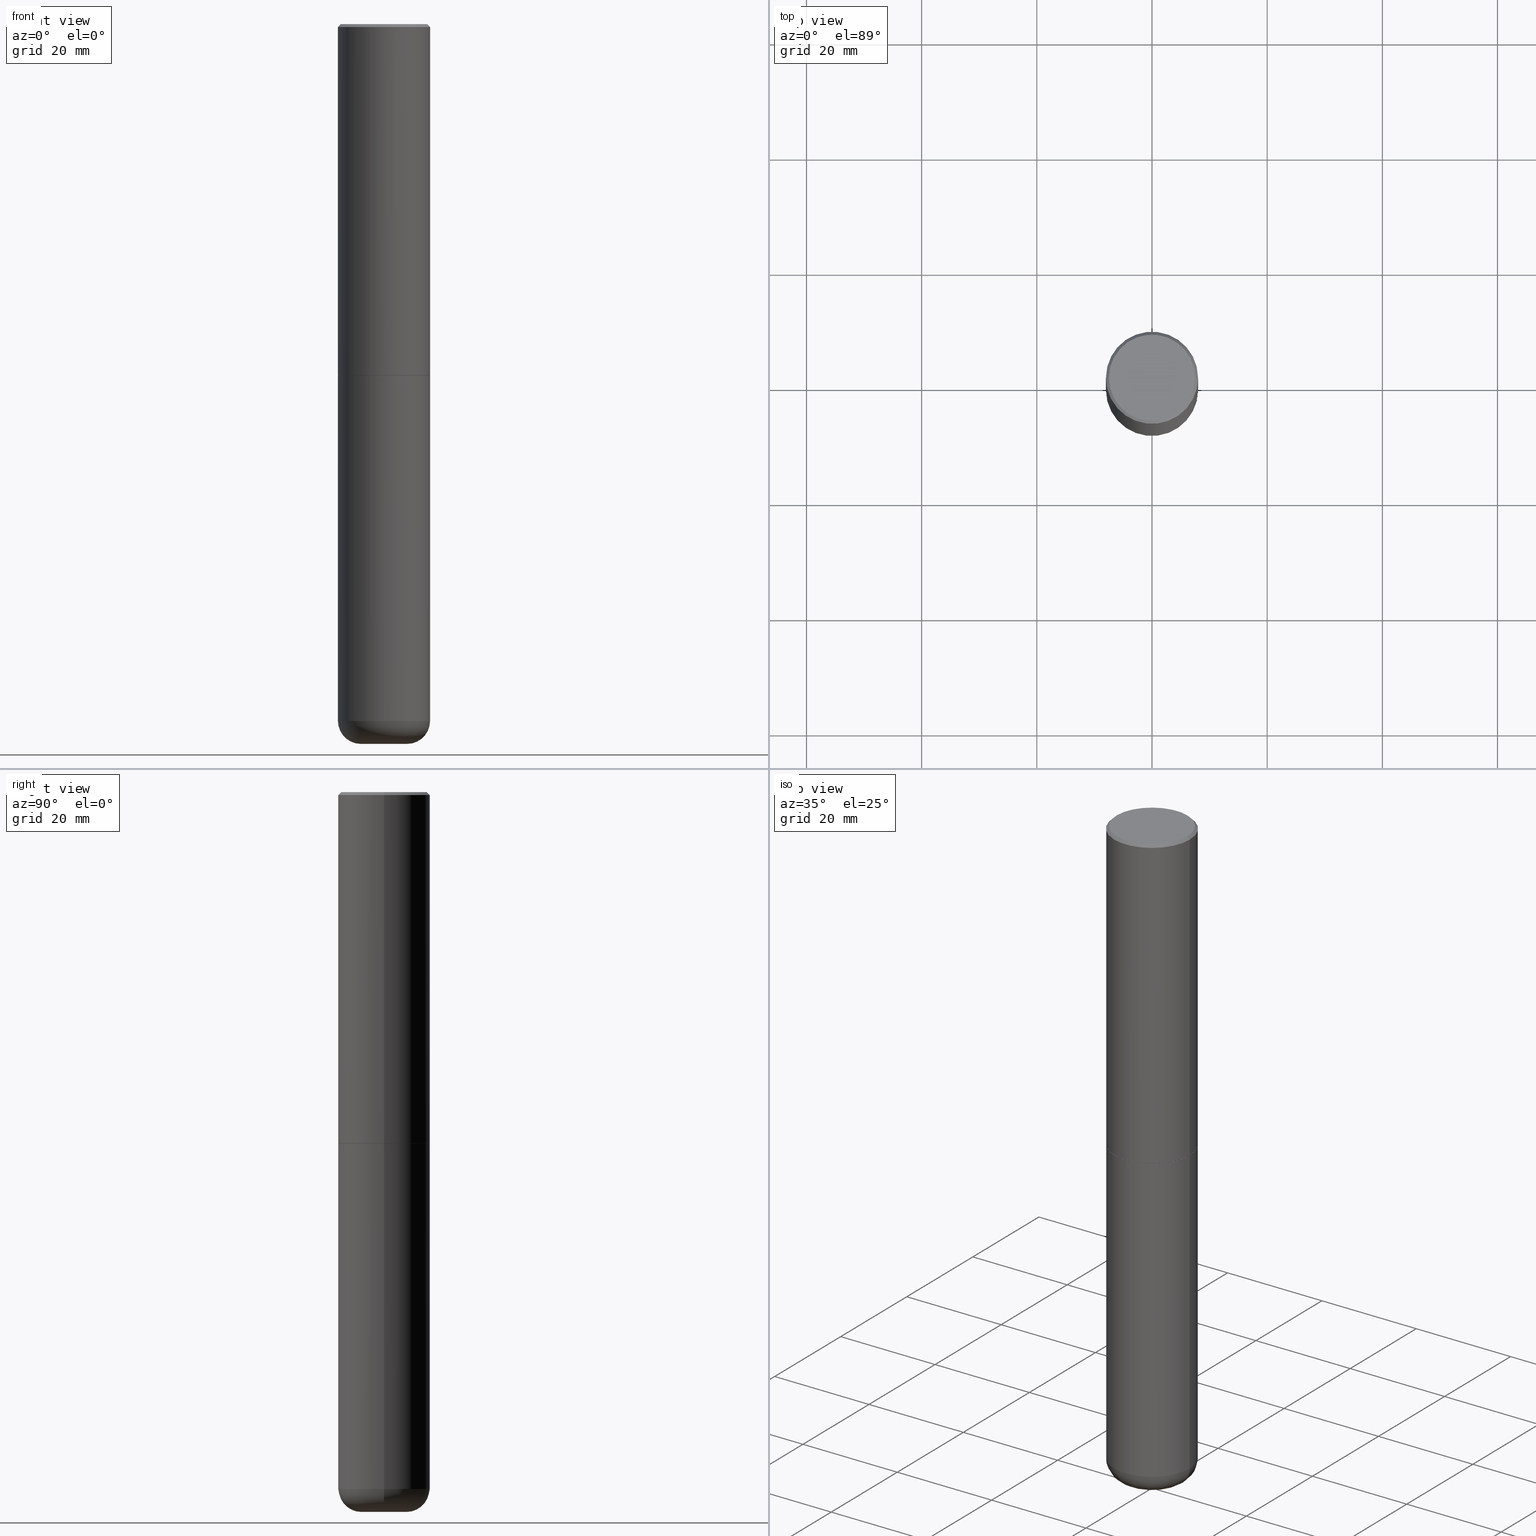
[diagram: canonical four-view strip — front | top / right | iso, engineering-drawing reading convention]
A machine part, canonical four-view strip (front | top / right | iso — engineering-drawing reading convention). The complete STEP part file that produces these views, byte-faithful:
ISO-10303-21;
HEADER;
FILE_DESCRIPTION (( 'STEP AP203' ),
    '1' );
FILE_NAME ('44878.STEP',
    '2024-03-04T12:49:39',
    ( '' ),
    ( '' ),
    'SwSTEP 2.0',
    'SolidWorks 2023',
    '' );
FILE_SCHEMA (( 'CONFIG_CONTROL_DESIGN' ));
ENDSEC;

DATA;
#1 = CARTESIAN_POINT ( 'NONE',  ( 1.164972429890475298E-28, -1.663271880198097531E-14, -4.763799999999999812 ) ) ;
#2 = PERSON_AND_ORGANIZATION ( #374, #380 ) ;
#3 = DIRECTION ( 'NONE',  ( 0.7071067811866199593, -2.468850131083015945E-15, 0.7071067811864750752 ) ) ;
#4 = ORIENTED_EDGE ( 'NONE', *, *, #378, .T. ) ;
#5 = DIRECTION ( 'NONE',  ( 1.000000000000000000, -6.982962677686266711E-15, 0.000000000000000000 ) ) ;
#6 = CONICAL_SURFACE ( 'NONE', #356, 0.3139500000000000068, 0.7853981633975507526 ) ;
#7 = DIRECTION ( 'NONE',  ( -2.438088387897960049E-29, 3.491481338843145188E-15, 1.000000000000000000 ) ) ;
#8 = EDGE_CURVE ( 'NONE', #292, #60, #270, .T. ) ;
#9 = LINE ( 'NONE', #138, #251 ) ;
#10 = DIRECTION ( 'NONE',  ( -2.445468806185136877E-29, 3.491481338843145188E-15, 1.000000000000000000 ) ) ;
#11 = CARTESIAN_POINT ( 'NONE',  ( 5.870592416128037625E-29, -8.381650102026854256E-15, -2.400599999999999845 ) ) ;
#12 = ORIENTED_EDGE ( 'NONE', *, *, #187, .T. ) ;
#13 = ADVANCED_FACE ( 'NONE', ( #40 ), #83, .T. ) ;
#14 = FACE_OUTER_BOUND ( 'NONE', #225, .T. ) ;
#15 = LINE ( 'NONE', #22, #219 ) ;
#16 = AXIS2_PLACEMENT_3D ( 'NONE', #286, #324, #230 ) ;
#17 = FACE_OUTER_BOUND ( 'NONE', #69, .T. ) ;
#18 = EDGE_CURVE ( 'NONE', #167, #60, #9, .T. ) ;
#19 =( CONVERSION_BASED_UNIT ( 'INCH', #85 ) LENGTH_UNIT ( ) NAMED_UNIT ( #23 ) );
#20 = PRODUCT_DEFINITION_SHAPE ( 'NONE', 'NONE',  #354 ) ;
#21 = AXIS2_PLACEMENT_3D ( 'NONE', #217, #151, #405 ) ;
#22 = CARTESIAN_POINT ( 'NONE',  ( 0.3149500000000000077, -2.199284095337289871E-15, 1.535751875536930130E-29 ) ) ;
#23 = DIMENSIONAL_EXPONENTS ( 1.000000000000000000, 0.000000000000000000, 0.000000000000000000, 0.000000000000000000, 0.000000000000000000, 0.000000000000000000, 0.000000000000000000 ) ;
#24 = ORIENTED_EDGE ( 'NONE', *, *, #8, .T. ) ;
#25 = ADVANCED_FACE ( 'NONE', ( #235 ), #396, .F. ) ;
#26 = FACE_OUTER_BOUND ( 'NONE', #222, .T. ) ;
#27 = ORIENTED_EDGE ( 'NONE', *, *, #366, .T. ) ;
#28 = APPROVAL_ROLE ( '' ) ;
#29 = CARTESIAN_POINT ( 'NONE',  ( -0.3149500000000003408, -1.439486445570453933E-14, -4.763799999999999812 ) ) ;
#30 = EDGE_LOOP ( 'NONE', ( #414, #74, #88, #305 ) ) ;
#31 = FACE_OUTER_BOUND ( 'NONE', #173, .T. ) ;
#32 = ORIENTED_EDGE ( 'NONE', *, *, #174, .T. ) ;
#33 = PERSON_AND_ORGANIZATION_ROLE ( 'creator' ) ;
#34 = CYLINDRICAL_SURFACE ( 'NONE', #202, 0.3149500000000001743 ) ;
#35 = DIRECTION ( 'NONE',  ( 2.438088387897960049E-29, -3.491481338843145188E-15, -1.000000000000000000 ) ) ;
#36 = EDGE_CURVE ( 'NONE', #60, #42, #89, .T. ) ;
#37 = CARTESIAN_POINT ( 'NONE',  ( 0.2949499999999998789, -2.127023677808859680E-15, 2.561107494061710474E-17 ) ) ;
#38 = CIRCLE ( 'NONE', #61, 0.3149500000000000077 ) ;
#39 = ORIENTED_EDGE ( 'NONE', *, *, #8, .F. ) ;
#40 = FACE_OUTER_BOUND ( 'NONE', #382, .T. ) ;
#41 = ADVANCED_FACE ( 'NONE', ( #239 ), #272, .T. ) ;
#42 = VERTEX_POINT ( 'NONE', #109 ) ;
#43 = CIRCLE ( 'NONE', #195, 0.3149500000000002853 ) ;
#44 = DIRECTION ( 'NONE',  ( -2.445468806185136597E-29, 3.491481338843145583E-15, 1.000000000000000000 ) ) ;
#45 = CYLINDRICAL_SURFACE ( 'NONE', #21, 0.3149500000000000077 ) ;
#46 = AXIS2_PLACEMENT_3D ( 'NONE', #221, #355, #62 ) ;
#47 = CIRCLE ( 'NONE', #113, 0.3139500000000000068 ) ;
#48 = PLANE ( 'NONE',  #72 ) ;
#49 = ADVANCED_FACE ( 'NONE', ( #237 ), #367, .F. ) ;
#50 = DIRECTION ( 'NONE',  ( -2.445468806185136597E-29, 3.491481338843145583E-15, 1.000000000000000000 ) ) ;
#51 = CIRCLE ( 'NONE', #325, 0.1574500000000000621 ) ;
#52 = CALENDAR_DATE ( 2024, 4, 3 ) ;
#53 = ORIENTED_EDGE ( 'NONE', *, *, #279, .F. ) ;
#54 = PERSON_AND_ORGANIZATION_ROLE ( 'creator' ) ;
#55 = LINE ( 'NONE', #162, #288 ) ;
#56 = ORIENTED_EDGE ( 'NONE', *, *, #68, .F. ) ;
#57 = CC_DESIGN_DATE_AND_TIME_ASSIGNMENT ( #383, #417, ( #354 ) ) ;
#58 = DATE_AND_TIME ( #295, #404 ) ;
#59 = CARTESIAN_POINT ( 'NONE',  ( 0.3149500000000002853, -1.058093419736414728E-14, -2.400599999999999845 ) ) ;
#60 = VERTEX_POINT ( 'NONE', #136 ) ;
#61 = AXIS2_PLACEMENT_3D ( 'NONE', #308, #137, #344 ) ;
#62 = DIRECTION ( 'NONE',  ( 1.000000000000000000, -6.982962677686266711E-15, 0.000000000000000000 ) ) ;
#63 = VERTEX_POINT ( 'NONE', #362 ) ;
#64 = PERSON_AND_ORGANIZATION ( #374, #380 ) ;
#65 = MANIFOLD_SOLID_BREP ( 'Body-Move/Copy2[1]', #299 ) ;
#66 = CARTESIAN_POINT ( 'NONE',  ( 0.3139500000000000068, -1.057744271602530112E-14, -2.401599999999999735 ) ) ;
#67 = MANIFOLD_SOLID_BREP ( 'Body-Move/Copy2[2]', #345 ) ;
#68 = EDGE_CURVE ( 'NONE', #164, #63, #353, .T. ) ;
#69 = EDGE_LOOP ( 'NONE', ( #105, #357, #220, #206 ) ) ;
#70 = CARTESIAN_POINT ( 'NONE',  ( -0.1574500000000000621, -1.522937101554951638E-14, -4.921300000000000452 ) ) ;
#71 = ORIENTED_EDGE ( 'NONE', *, *, #203, .F. ) ;
#72 = AXIS2_PLACEMENT_3D ( 'NONE', #86, #278, #243 ) ;
#73 = DIRECTION ( 'NONE',  ( 1.000000000000000000, -6.982962677686265922E-15, 4.876176775795935232E-29 ) ) ;
#74 = ORIENTED_EDGE ( 'NONE', *, *, #99, .T. ) ;
#75 = APPROVAL ( #285, 'UNSPECIFIED' ) ;
#76 = CARTESIAN_POINT ( 'NONE',  ( -0.3149500000000000077, -1.027107584639690030E-14, -2.401599999999999735 ) ) ;
#77 = CARTESIAN_POINT ( 'NONE',  ( 2.059624841783563274E-15, 0.2949499999999998789, -1.017006883421484104E-15 ) ) ;
#78 = DIRECTION ( 'NONE',  ( 2.445468806185136597E-29, -3.491481338843145583E-15, -1.000000000000000000 ) ) ;
#79 = DIRECTION ( 'NONE',  ( 1.000000000000000000, -6.982962677686266711E-15, 4.883557194083112901E-29 ) ) ;
#80 = CIRCLE ( 'NONE', #403, 0.2949499999999998789 ) ;
#81 = EDGE_CURVE ( 'NONE', #63, #292, #55, .T. ) ;
#82 =( NAMED_UNIT ( * ) SI_UNIT ( $, .STERADIAN. ) SOLID_ANGLE_UNIT ( ) );
#83 = TOROIDAL_SURFACE ( 'NONE', #158, 0.1574500000000000066, 0.1575000000000006395 ) ;
#84 = EDGE_CURVE ( 'NONE', #258, #188, #214, .T. ) ;
#85 = LENGTH_MEASURE_WITH_UNIT ( LENGTH_MEASURE( 0.02539999999999999897 ), #314 );
#86 = CARTESIAN_POINT ( 'NONE',  ( 5.873037884934223228E-29, -8.385141583365697263E-15, -2.401599999999999735 ) ) ;
#87 = APPLICATION_PROTOCOL_DEFINITION ( 'international standard', 'config_control_design', 1994, #363 ) ;
#88 = ORIENTED_EDGE ( 'NONE', *, *, #320, .T. ) ;
#89 = CIRCLE ( 'NONE', #311, 0.3149500000000000077 ) ;
#90 = LINE ( 'NONE', #388, #177 ) ;
#91 = ADVANCED_FACE ( 'NONE', ( #381 ), #34, .T. ) ;
#92 = PERSON_AND_ORGANIZATION ( #374, #380 ) ;
#93 = DIRECTION ( 'NONE',  ( -2.445468806185136597E-29, 3.491481338843145583E-15, 1.000000000000000000 ) ) ;
#94 = COORDINATED_UNIVERSAL_TIME_OFFSET ( 5, 0, .BEHIND. ) ;
#95 = DIRECTION ( 'NONE',  ( -2.445468806185136597E-29, 3.491481338843145583E-15, 1.000000000000000000 ) ) ;
#96 = ORIENTED_EDGE ( 'NONE', *, *, #84, .T. ) ;
#97 = CIRCLE ( 'NONE', #337, 0.1575000000000006672 ) ;
#98 = CALENDAR_DATE ( 2024, 4, 3 ) ;
#99 = EDGE_CURVE ( 'NONE', #294, #42, #90, .T. ) ;
#100 = DIRECTION ( 'NONE',  ( 1.000000000000000000, -6.982962677686266711E-15, 4.883557194083112901E-29 ) ) ;
#101 = ORIENTED_EDGE ( 'NONE', *, *, #84, .F. ) ;
#102 = DIRECTION ( 'NONE',  ( 2.445468806185136597E-29, -3.491481338843145583E-15, -1.000000000000000000 ) ) ;
#103 = DIRECTION ( 'NONE',  ( -1.000000000000000000, 6.982962677686265922E-15, -4.876176775795935793E-29 ) ) ;
#104 = CARTESIAN_POINT ( 'NONE',  ( 1.164972429890475298E-28, -1.663271880198097531E-14, -4.763799999999999812 ) ) ;
#105 = ORIENTED_EDGE ( 'NONE', *, *, #81, .F. ) ;
#106 = ADVANCED_FACE ( 'NONE', ( #26 ), #257, .T. ) ;
#107 =( GEOMETRIC_REPRESENTATION_CONTEXT ( 3 ) GLOBAL_UNCERTAINTY_ASSIGNED_CONTEXT ( ( #268 ) ) GLOBAL_UNIT_ASSIGNED_CONTEXT ( ( #19, #372, #82 ) ) REPRESENTATION_CONTEXT ( 'NONE', 'WORKASPACE' ) );
#108 = SECURITY_CLASSIFICATION ( '', '', #346 ) ;
#109 = CARTESIAN_POINT ( 'NONE',  ( 0.3149500000000000077, -2.230543471175007450E-15, -0.02000000000000007327 ) ) ;
#110 = DIRECTION ( 'NONE',  ( -2.445468806185136597E-29, 3.491481338843145583E-15, 1.000000000000000000 ) ) ;
#111 = DIRECTION ( 'NONE',  ( 2.438088387897960049E-29, -3.491481338843145188E-15, -1.000000000000000000 ) ) ;
#112 = EDGE_CURVE ( 'NONE', #227, #349, #347, .T. ) ;
#113 = AXIS2_PLACEMENT_3D ( 'NONE', #128, #95, #5 ) ;
#114 = FACE_OUTER_BOUND ( 'NONE', #319, .T. ) ;
#115 = ADVANCED_FACE ( 'NONE', ( #224 ), #209, .T. ) ;
#116 = CARTESIAN_POINT ( 'NONE',  ( 0.3149500000000003408, -1.883200289731826676E-14, -4.763799999999999812 ) ) ;
#117 = AXIS2_PLACEMENT_3D ( 'NONE', #125, #102, #263 ) ;
#118 = CARTESIAN_POINT ( 'NONE',  ( 5.873037884934223228E-29, -8.385141583365697263E-15, -2.401599999999999735 ) ) ;
#119 = APPLICATION_PROTOCOL_DEFINITION ( 'international standard', 'config_control_design', 1994, #139 ) ;
#120 = VERTEX_POINT ( 'NONE', #70 ) ;
#121 = APPROVAL_ROLE ( '' ) ;
#122 = CARTESIAN_POINT ( 'NONE',  ( -6.263108486011318528E-46, 8.942059022282683748E-32, 2.561107494060246767E-17 ) ) ;
#123 = EDGE_CURVE ( 'NONE', #63, #164, #47, .T. ) ;
#124 = ORIENTED_EDGE ( 'NONE', *, *, #320, .F. ) ;
#125 = CARTESIAN_POINT ( 'NONE',  ( 4.890937612370290675E-31, -6.982962677686316261E-17, -0.02000000000000007327 ) ) ;
#126 = ORIENTED_EDGE ( 'NONE', *, *, #163, .F. ) ;
#127 = COORDINATED_UNIVERSAL_TIME_OFFSET ( 5, 0, .BEHIND. ) ;
#128 = CARTESIAN_POINT ( 'NONE',  ( 5.873037884934223228E-29, -8.385141583365697263E-15, -2.401599999999999735 ) ) ;
#129 = ORIENTED_EDGE ( 'NONE', *, *, #233, .T. ) ;
#130 = PERSON_AND_ORGANIZATION ( #374, #380 ) ;
#131 = CARTESIAN_POINT ( 'NONE',  ( 0.3149500000000000077, -1.058442567870298871E-14, -2.401599999999999735 ) ) ;
#132 = EDGE_LOOP ( 'NONE', ( #249, #204, #317, #411 ) ) ;
#133 = AXIS2_PLACEMENT_3D ( 'NONE', #1, #93, #418 ) ;
#134 = PRODUCT_DEFINITION_FORMATION_WITH_SPECIFIED_SOURCE ( 'ANY', '', #211, .NOT_KNOWN. ) ;
#135 = DIRECTION ( 'NONE',  ( -2.445468806185136597E-29, 3.491481338843145583E-15, 1.000000000000000000 ) ) ;
#136 = CARTESIAN_POINT ( 'NONE',  ( -0.3149500000000000077, 2.129454468560426573E-15, -0.02000000000000007327 ) ) ;
#137 = DIRECTION ( 'NONE',  ( -2.445468806185136597E-29, 3.491481338843145583E-15, 1.000000000000000000 ) ) ;
#138 = CARTESIAN_POINT ( 'NONE',  ( -0.3149500000000000077, 2.129454468560426573E-15, -0.02000000000000007327 ) ) ;
#139 = APPLICATION_CONTEXT ( 'configuration controlled 3d designs of mechanical parts and assemblies' ) ;
#140 = CC_DESIGN_PERSON_AND_ORGANIZATION_ASSIGNMENT ( #323, #54, ( #354 ) ) ;
#141 = DIRECTION ( 'NONE',  ( 1.000000000000000000, -6.982962677686266711E-15, 0.000000000000000000 ) ) ;
#142 = AXIS2_PLACEMENT_3D ( 'NONE', #296, #190, #298 ) ;
#143 = CARTESIAN_POINT ( 'NONE',  ( 1.164972429890475298E-28, -1.663271880198097531E-14, -4.763799999999999812 ) ) ;
#144 = ADVANCED_FACE ( 'NONE', ( #384 ), #265, .T. ) ;
#145 = CYLINDRICAL_SURFACE ( 'NONE', #375, 0.3149500000000001743 ) ;
#146 = DIRECTION ( 'NONE',  ( 7.105427357601001859E-15, 1.000000000000000000, -3.491481338843145583E-15 ) ) ;
#147 = CIRCLE ( 'NONE', #290, 0.1575000000000006672 ) ;
#148 = CIRCLE ( 'NONE', #16, 0.1574500000000000621 ) ;
#149 = CARTESIAN_POINT ( 'NONE',  ( 1.203488563587891594E-28, -1.718262711284877655E-14, -4.921300000000000452 ) ) ;
#150 = CC_DESIGN_PERSON_AND_ORGANIZATION_ASSIGNMENT ( #64, #192, ( #108 ) ) ;
#151 = DIRECTION ( 'NONE',  ( -2.445468806185136597E-29, 3.491481338843145583E-15, 1.000000000000000000 ) ) ;
#152 = APPROVAL_PERSON_ORGANIZATION ( #259, #213, #28 ) ;
#153 = FACE_OUTER_BOUND ( 'NONE', #401, .T. ) ;
#154 = VERTEX_POINT ( 'NONE', #59 ) ;
#155 = ADVANCED_FACE ( 'NONE', ( #31 ), #6, .T. ) ;
#156 = EDGE_LOOP ( 'NONE', ( #39, #129, #208, #334 ) ) ;
#157 = DIRECTION ( 'NONE',  ( 1.000000000000000000, -6.982962677686266711E-15, 4.876176775795936353E-29 ) ) ;
#158 = AXIS2_PLACEMENT_3D ( 'NONE', #143, #331, #79 ) ;
#159 = ORIENTED_EDGE ( 'NONE', *, *, #395, .T. ) ;
#160 = CIRCLE ( 'NONE', #253, 0.2949499999999998789 ) ;
#161 = DATE_TIME_ROLE ( 'classification_date' ) ;
#162 = CARTESIAN_POINT ( 'NONE',  ( -0.3139500000000000068, -6.154392664446862287E-15, -2.401599999999999735 ) ) ;
#163 = EDGE_CURVE ( 'NONE', #164, #154, #193, .T. ) ;
#164 = VERTEX_POINT ( 'NONE', #168 ) ;
#165 = COORDINATED_UNIVERSAL_TIME_OFFSET ( 5, 0, .BEHIND. ) ;
#166 = CARTESIAN_POINT ( 'NONE',  ( 5.873037884934223228E-29, -8.385141583365697263E-15, -2.401599999999999735 ) ) ;
#167 = VERTEX_POINT ( 'NONE', #293 ) ;
#168 = CARTESIAN_POINT ( 'NONE',  ( 0.3139500000000000068, -1.057744271602530112E-14, -2.401599999999999735 ) ) ;
#169 = EDGE_LOOP ( 'NONE', ( #56, #287 ) ) ;
#170 = VECTOR ( 'NONE', #10, 39.37007874015748143 ) ;
#171 = CONICAL_SURFACE ( 'NONE', #274, 0.3139500000000000068, 0.7853981633975507526 ) ;
#172 = FACE_OUTER_BOUND ( 'NONE', #132, .T. ) ;
#173 = EDGE_LOOP ( 'NONE', ( #284, #176, #53, #126 ) ) ;
#174 = EDGE_CURVE ( 'NONE', #264, #120, #148, .T. ) ;
#175 = DIRECTION ( 'NONE',  ( 1.000000000000000000, -6.982962677686265922E-15, 4.876176775795935793E-29 ) ) ;
#176 = ORIENTED_EDGE ( 'NONE', *, *, #81, .T. ) ;
#177 = VECTOR ( 'NONE', #352, 39.37007874015748854 ) ;
#178 = AXIS2_PLACEMENT_3D ( 'NONE', #104, #400, #335 ) ;
#179 = DIRECTION ( 'NONE',  ( -1.000000000000000000, 6.982962677686266711E-15, 0.000000000000000000 ) ) ;
#180 = DIRECTION ( 'NONE',  ( -2.445468806185136597E-29, 3.491481338843145583E-15, 1.000000000000000000 ) ) ;
#181 = CARTESIAN_POINT ( 'NONE',  ( -0.1574500000000000066, -1.551396926452669851E-14, -4.763799999999999812 ) ) ;
#182 = VECTOR ( 'NONE', #328, 39.37007874015748143 ) ;
#183 = DIRECTION ( 'NONE',  ( -1.000000000000000000, 7.105427357601005014E-15, 0.000000000000000000 ) ) ;
#184 = DIRECTION ( 'NONE',  ( -2.445468806185136597E-29, 3.491481338843145583E-15, 1.000000000000000000 ) ) ;
#185 = CIRCLE ( 'NONE', #178, 0.3149500000000000077 ) ;
#186 = CC_DESIGN_SECURITY_CLASSIFICATION ( #108, ( #134 ) ) ;
#187 = EDGE_CURVE ( 'NONE', #264, #349, #147, .T. ) ;
#188 = VERTEX_POINT ( 'NONE', #131 ) ;
#189 = DATE_AND_TIME ( #52, #254 ) ;
#190 = DIRECTION ( 'NONE',  ( -2.445468806185136597E-29, 3.491481338843145583E-15, 1.000000000000000000 ) ) ;
#191 = ORIENTED_EDGE ( 'NONE', *, *, #246, .T. ) ;
#192 = PERSON_AND_ORGANIZATION_ROLE ( 'classification_officer' ) ;
#193 = LINE ( 'NONE', #66, #312 ) ;
#194 = ORIENTED_EDGE ( 'NONE', *, *, #246, .F. ) ;
#195 = AXIS2_PLACEMENT_3D ( 'NONE', #11, #110, #238 ) ;
#196 = CARTESIAN_POINT ( 'NONE',  ( 1.164972429890475298E-28, -1.663271880198097531E-14, -4.763799999999999812 ) ) ;
#197 = COORDINATED_UNIVERSAL_TIME_OFFSET ( 5, 0, .BEHIND. ) ;
#198 = DIRECTION ( 'NONE',  ( -6.982962677686266711E-15, -1.000000000000000000, 3.491481338843145583E-15 ) ) ;
#199 = ORIENTED_EDGE ( 'NONE', *, *, #112, .F. ) ;
#200 = CARTESIAN_POINT ( 'NONE',  ( -0.3149500000000000077, 2.237854346276435590E-15, -1.549218606675782676E-29 ) ) ;
#201 = ORIENTED_EDGE ( 'NONE', *, *, #402, .F. ) ;
#202 = AXIS2_PLACEMENT_3D ( 'NONE', #260, #350, #321 ) ;
#203 = EDGE_CURVE ( 'NONE', #227, #258, #330, .T. ) ;
#204 = ORIENTED_EDGE ( 'NONE', *, *, #242, .F. ) ;
#205 = CARTESIAN_POINT ( 'NONE',  ( 0.000000000000000000, 0.000000000000000000, 0.000000000000000000 ) ) ;
#206 = ORIENTED_EDGE ( 'NONE', *, *, #233, .F. ) ;
#207 = CC_DESIGN_PERSON_AND_ORGANIZATION_ASSIGNMENT ( #412, #33, ( #134 ) ) ;
#208 = ORIENTED_EDGE ( 'NONE', *, *, #373, .T. ) ;
#209 = CONICAL_SURFACE ( 'NONE', #117, 0.3149500000000000077, 0.7853981633974490562 ) ;
#210 = CARTESIAN_POINT ( 'NONE',  ( 0.1574500000000000621, -1.828209458645048130E-14, -4.921300000000000452 ) ) ;
#211 = PRODUCT ( '44878', '44878', '', ( #315 ) ) ;
#212 = DIRECTION ( 'NONE',  ( -2.445468806185136877E-29, 3.491481338843145188E-15, 1.000000000000000000 ) ) ;
#213 = APPROVAL ( #387, 'UNSPECIFIED' ) ;
#214 = CIRCLE ( 'NONE', #142, 0.3149500000000000077 ) ;
#215 = APPROVAL_PERSON_ORGANIZATION ( #92, #75, #121 ) ;
#216 = DESIGN_CONTEXT ( 'detailed design', #139, 'design' ) ;
#217 = CARTESIAN_POINT ( 'NONE',  ( 0.000000000000000000, 0.000000000000000000, 0.000000000000000000 ) ) ;
#218 = PERSON_AND_ORGANIZATION_ROLE ( 'design_supplier' ) ;
#219 = VECTOR ( 'NONE', #212, 39.37007874015748143 ) ;
#220 = ORIENTED_EDGE ( 'NONE', *, *, #163, .T. ) ;
#221 = CARTESIAN_POINT ( 'NONE',  ( 5.873037884934223228E-29, -8.385141583365697263E-15, -2.401599999999999735 ) ) ;
#222 = EDGE_LOOP ( 'NONE', ( #191, #329, #302, #201 ) ) ;
#223 = COORDINATED_UNIVERSAL_TIME_OFFSET ( 5, 0, .BEHIND. ) ;
#224 = FACE_OUTER_BOUND ( 'NONE', #30, .T. ) ;
#225 = EDGE_LOOP ( 'NONE', ( #365, #24, #124, #322 ) ) ;
#226 = DIRECTION ( 'NONE',  ( 1.000000000000000000, -6.982962677686266711E-15, 0.000000000000000000 ) ) ;
#227 = VERTEX_POINT ( 'NONE', #29 ) ;
#228 = CC_DESIGN_APPROVAL ( #281, ( #134 ) ) ;
#229 = APPROVAL_DATE_TIME ( #250, #75 ) ;
#230 = DIRECTION ( 'NONE',  ( 1.000000000000000000, -6.982962677686276177E-15, 0.000000000000000000 ) ) ;
#231 = EDGE_LOOP ( 'NONE', ( #326, #255 ) ) ;
#232 = DIRECTION ( 'NONE',  ( -2.445468806185136597E-29, 3.491481338843145583E-15, 1.000000000000000000 ) ) ;
#233 = EDGE_CURVE ( 'NONE', #292, #154, #371, .T. ) ;
#234 = CARTESIAN_POINT ( 'NONE',  ( 5.873037884934223228E-29, -8.385141583365697263E-15, -2.401599999999999735 ) ) ;
#235 = FACE_OUTER_BOUND ( 'NONE', #169, .T. ) ;
#236 = VECTOR ( 'NONE', #247, 39.37007874015748143 ) ;
#237 = FACE_OUTER_BOUND ( 'NONE', #385, .T. ) ;
#238 = DIRECTION ( 'NONE',  ( 1.000000000000000000, -6.982962677686269866E-15, 0.000000000000000000 ) ) ;
#239 = FACE_OUTER_BOUND ( 'NONE', #231, .T. ) ;
#240 = AXIS2_PLACEMENT_3D ( 'NONE', #289, #361, #157 ) ;
#241 = CARTESIAN_POINT ( 'NONE',  ( -6.263108486011318528E-46, 8.942059022282683748E-32, 2.561107494060246767E-17 ) ) ;
#242 = EDGE_CURVE ( 'NONE', #167, #294, #160, .T. ) ;
#243 = DIRECTION ( 'NONE',  ( -1.000000000000000000, 6.982962677686265922E-15, -4.876176775795935793E-29 ) ) ;
#244 = AXIS2_PLACEMENT_3D ( 'NONE', #234, #7, #175 ) ;
#245 = AXIS2_PLACEMENT_3D ( 'NONE', #248, #408, #282 ) ;
#246 = EDGE_CURVE ( 'NONE', #349, #227, #185, .T. ) ;
#247 = DIRECTION ( 'NONE',  ( -2.445468806185136877E-29, 3.491481338843145188E-15, 1.000000000000000000 ) ) ;
#248 = CARTESIAN_POINT ( 'NONE',  ( 0.000000000000000000, 0.000000000000000000, 0.000000000000000000 ) ) ;
#249 = ORIENTED_EDGE ( 'NONE', *, *, #99, .F. ) ;
#250 = DATE_AND_TIME ( #351, #342 ) ;
#251 = VECTOR ( 'NONE', #271, 39.37007874015748854 ) ;
#252 = DIRECTION ( 'NONE',  ( -2.445468806185136597E-29, 3.491481338843145583E-15, 1.000000000000000000 ) ) ;
#253 = AXIS2_PLACEMENT_3D ( 'NONE', #122, #252, #276 ) ;
#254 = LOCAL_TIME ( 7, 49, 39.00000000000000000, #197 ) ;
#255 = ORIENTED_EDGE ( 'NONE', *, *, #378, .F. ) ;
#256 = APPROVAL_STATUS ( 'not_yet_approved' ) ;
#257 = CYLINDRICAL_SURFACE ( 'NONE', #240, 0.3149500000000000077 ) ;
#258 = VERTEX_POINT ( 'NONE', #76 ) ;
#259 = PERSON_AND_ORGANIZATION ( #374, #380 ) ;
#260 = CARTESIAN_POINT ( 'NONE',  ( 0.000000000000000000, 0.000000000000000000, 0.000000000000000000 ) ) ;
#261 = ORIENTED_EDGE ( 'NONE', *, *, #112, .T. ) ;
#262 = APPROVAL_DATE_TIME ( #390, #281 ) ;
#263 = DIRECTION ( 'NONE',  ( -1.000000000000000000, 6.982962677686266711E-15, 0.000000000000000000 ) ) ;
#264 = VERTEX_POINT ( 'NONE', #210 ) ;
#265 = TOROIDAL_SURFACE ( 'NONE', #306, 0.1574500000000000066, 0.1575000000000006395 ) ;
#266 = APPROVAL_ROLE ( '' ) ;
#267 = ADVANCED_FACE ( 'NONE', ( #14 ), #145, .T. ) ;
#268 = UNCERTAINTY_MEASURE_WITH_UNIT (LENGTH_MEASURE( 1.000000000000000082E-05 ), #19, 'distance_accuracy_value', 'NONE');
#269 = CARTESIAN_POINT ( 'NONE',  ( 0.1574500000000000066, -1.773218627558268007E-14, -4.763799999999999812 ) ) ;
#270 = LINE ( 'NONE', #369, #170 ) ;
#271 = DIRECTION ( 'NONE',  ( -0.7071067811865480168, 2.468850131082262583E-15, -0.7071067811865469066 ) ) ;
#272 = PLANE ( 'NONE',  #364 ) ;
#273 = CC_DESIGN_DATE_AND_TIME_ASSIGNMENT ( #189, #161, ( #108 ) ) ;
#274 = AXIS2_PLACEMENT_3D ( 'NONE', #376, #184, #280 ) ;
#275 = CC_DESIGN_APPROVAL ( #213, ( #354 ) ) ;
#276 = DIRECTION ( 'NONE',  ( 1.000000000000000000, -6.982962677686267499E-15, 4.876696176320539706E-29 ) ) ;
#277 = DIRECTION ( 'NONE',  ( -2.445468806185136597E-29, 3.491481338843145583E-15, 1.000000000000000000 ) ) ;
#278 = DIRECTION ( 'NONE',  ( 2.438088387897960049E-29, -3.491481338843145188E-15, -1.000000000000000000 ) ) ;
#279 = EDGE_CURVE ( 'NONE', #154, #292, #43, .T. ) ;
#280 = DIRECTION ( 'NONE',  ( 1.000000000000000000, -6.982962677686266711E-15, 0.000000000000000000 ) ) ;
#281 = APPROVAL ( #256, 'UNSPECIFIED' ) ;
#282 = DIRECTION ( 'NONE',  ( 1.000000000000000000, 0.000000000000000000, 0.000000000000000000 ) ) ;
#283 = AXIS2_PLACEMENT_3D ( 'NONE', #368, #78, #179 ) ;
#284 = ORIENTED_EDGE ( 'NONE', *, *, #68, .T. ) ;
#285 = APPROVAL_STATUS ( 'not_yet_approved' ) ;
#286 = CARTESIAN_POINT ( 'NONE',  ( 1.203488563587891594E-28, -1.718262711284877655E-14, -4.921300000000000452 ) ) ;
#287 = ORIENTED_EDGE ( 'NONE', *, *, #123, .F. ) ;
#288 = VECTOR ( 'NONE', #359, 39.37007874015748143 ) ;
#289 = CARTESIAN_POINT ( 'NONE',  ( 0.000000000000000000, 0.000000000000000000, 0.000000000000000000 ) ) ;
#290 = AXIS2_PLACEMENT_3D ( 'NONE', #269, #198, #413 ) ;
#291 = CC_DESIGN_PERSON_AND_ORGANIZATION_ASSIGNMENT ( #340, #409, ( #211 ) ) ;
#292 = VERTEX_POINT ( 'NONE', #301 ) ;
#293 = CARTESIAN_POINT ( 'NONE',  ( -0.2949499999999998789, 2.094539655171995318E-15, 2.561107494058794462E-17 ) ) ;
#294 = VERTEX_POINT ( 'NONE', #37 ) ;
#295 = CALENDAR_DATE ( 2024, 4, 3 ) ;
#296 = CARTESIAN_POINT ( 'NONE',  ( 5.873037884934223228E-29, -8.385141583365697263E-15, -2.401599999999999735 ) ) ;
#297 = ORIENTED_EDGE ( 'NONE', *, *, #338, .T. ) ;
#298 = DIRECTION ( 'NONE',  ( 1.000000000000000000, -6.982962677686269866E-15, 0.000000000000000000 ) ) ;
#299 = CLOSED_SHELL ( 'NONE', ( #106, #144, #410, #370, #13, #41 ) ) ;
#300 = ORIENTED_EDGE ( 'NONE', *, *, #402, .T. ) ;
#301 = CARTESIAN_POINT ( 'NONE',  ( -0.3149500000000002853, -1.987885518125419637E-15, -2.400599999999999845 ) ) ;
#302 = ORIENTED_EDGE ( 'NONE', *, *, #338, .F. ) ;
#303 = ADVANCED_BREP_SHAPE_REPRESENTATION ( '44878', ( #65, #67, #245 ), #107 ) ;
#304 = CARTESIAN_POINT ( 'NONE',  ( 4.890937612370290675E-31, -6.982962677686316261E-17, -0.02000000000000007327 ) ) ;
#305 = ORIENTED_EDGE ( 'NONE', *, *, #18, .F. ) ;
#306 = AXIS2_PLACEMENT_3D ( 'NONE', #196, #232, #100 ) ;
#307 = CC_DESIGN_APPROVAL ( #75, ( #108 ) ) ;
#308 = CARTESIAN_POINT ( 'NONE',  ( 4.890937612370290675E-31, -6.982962677686316261E-17, -0.02000000000000007327 ) ) ;
#309 = ADVANCED_FACE ( 'NONE', ( #172 ), #416, .T. ) ;
#310 = LINE ( 'NONE', #406, #236 ) ;
#311 = AXIS2_PLACEMENT_3D ( 'NONE', #304, #277, #141 ) ;
#312 = VECTOR ( 'NONE', #3, 39.37007874015748143 ) ;
#313 = DIRECTION ( 'NONE',  ( 1.000000000000000000, -6.982962677686276177E-15, 0.000000000000000000 ) ) ;
#314 =( LENGTH_UNIT ( ) NAMED_UNIT ( * ) SI_UNIT ( $, .METRE. ) );
#315 = MECHANICAL_CONTEXT ( 'NONE', #363, 'mechanical' ) ;
#316 = LOCAL_TIME ( 7, 49, 39.00000000000000000, #127 ) ;
#317 = ORIENTED_EDGE ( 'NONE', *, *, #18, .T. ) ;
#318 = APPROVAL_DATE_TIME ( #58, #213 ) ;
#319 = EDGE_LOOP ( 'NONE', ( #297, #96 ) ) ;
#320 = EDGE_CURVE ( 'NONE', #42, #60, #38, .T. ) ;
#321 = DIRECTION ( 'NONE',  ( 1.000000000000000000, -6.982962677686265922E-15, 4.876176775795935232E-29 ) ) ;
#322 = ORIENTED_EDGE ( 'NONE', *, *, #373, .F. ) ;
#323 = PERSON_AND_ORGANIZATION ( #374, #380 ) ;
#324 = DIRECTION ( 'NONE',  ( -2.445468806185136597E-29, 3.491481338843145583E-15, 1.000000000000000000 ) ) ;
#325 = AXIS2_PLACEMENT_3D ( 'NONE', #149, #50, #313 ) ;
#326 = ORIENTED_EDGE ( 'NONE', *, *, #174, .F. ) ;
#327 = CARTESIAN_POINT ( 'NONE',  ( 5.870592416128037625E-29, -8.381650102026854256E-15, -2.400599999999999845 ) ) ;
#328 = DIRECTION ( 'NONE',  ( -2.445468806185136877E-29, 3.491481338843145188E-15, 1.000000000000000000 ) ) ;
#329 = ORIENTED_EDGE ( 'NONE', *, *, #203, .T. ) ;
#330 = LINE ( 'NONE', #200, #182 ) ;
#331 = DIRECTION ( 'NONE',  ( -2.445468806185136597E-29, 3.491481338843145583E-15, 1.000000000000000000 ) ) ;
#332 = ORIENTED_EDGE ( 'NONE', *, *, #242, .T. ) ;
#333 = DIRECTION ( 'NONE',  ( -2.445468806185136597E-29, 3.491481338843145583E-15, 1.000000000000000000 ) ) ;
#334 = ORIENTED_EDGE ( 'NONE', *, *, #36, .F. ) ;
#335 = DIRECTION ( 'NONE',  ( 1.000000000000000000, -6.982962677686269866E-15, 0.000000000000000000 ) ) ;
#336 = DIRECTION ( 'NONE',  ( -1.000000000000000000, 6.982962677686265922E-15, -4.876176775795935793E-29 ) ) ;
#337 = AXIS2_PLACEMENT_3D ( 'NONE', #181, #146, #183 ) ;
#338 = EDGE_CURVE ( 'NONE', #188, #258, #341, .T. ) ;
#339 = DIRECTION ( 'NONE',  ( 1.000000000000000000, -6.982962677686269866E-15, 0.000000000000000000 ) ) ;
#340 = PERSON_AND_ORGANIZATION ( #374, #380 ) ;
#341 = CIRCLE ( 'NONE', #397, 0.3149500000000000077 ) ;
#342 = LOCAL_TIME ( 7, 49, 39.00000000000000000, #223 ) ;
#343 = PRODUCT_RELATED_PRODUCT_CATEGORY ( 'detail', '', ( #211 ) ) ;
#344 = DIRECTION ( 'NONE',  ( 1.000000000000000000, -6.982962677686266711E-15, 0.000000000000000000 ) ) ;
#345 = CLOSED_SHELL ( 'NONE', ( #155, #267, #115, #309, #91, #386, #25, #49 ) ) ;
#346 = SECURITY_CLASSIFICATION_LEVEL ( 'unclassified' ) ;
#347 = CIRCLE ( 'NONE', #133, 0.3149500000000000077 ) ;
#348 = APPROVAL_PERSON_ORGANIZATION ( #2, #281, #266 ) ;
#349 = VERTEX_POINT ( 'NONE', #116 ) ;
#350 = DIRECTION ( 'NONE',  ( -2.445468806185136597E-29, 3.491481338843145583E-15, 1.000000000000000000 ) ) ;
#351 = CALENDAR_DATE ( 2024, 4, 3 ) ;
#352 = DIRECTION ( 'NONE',  ( 0.7071067811865480168, -7.319954787623256045E-15, -0.7071067811865469066 ) ) ;
#353 = CIRCLE ( 'NONE', #46, 0.3139500000000000068 ) ;
#354 = PRODUCT_DEFINITION ( 'UNKNOWN', '', #134, #216 ) ;
#355 = DIRECTION ( 'NONE',  ( -2.445468806185136597E-29, 3.491481338843145583E-15, 1.000000000000000000 ) ) ;
#356 = AXIS2_PLACEMENT_3D ( 'NONE', #166, #135, #226 ) ;
#357 = ORIENTED_EDGE ( 'NONE', *, *, #123, .T. ) ;
#358 = SHAPE_DEFINITION_REPRESENTATION ( #20, #303 ) ;
#359 = DIRECTION ( 'NONE',  ( -0.7071067811866199593, 7.493145998870616062E-15, 0.7071067811864750752 ) ) ;
#360 = ORIENTED_EDGE ( 'NONE', *, *, #366, .F. ) ;
#361 = DIRECTION ( 'NONE',  ( -2.445468806185136597E-29, 3.491481338843145583E-15, 1.000000000000000000 ) ) ;
#362 = CARTESIAN_POINT ( 'NONE',  ( -0.3139500000000000068, -6.149094210098639096E-15, -2.401599999999999735 ) ) ;
#363 = APPLICATION_CONTEXT ( 'configuration controlled 3d designs of mechanical parts and assemblies' ) ;
#364 = AXIS2_PLACEMENT_3D ( 'NONE', #398, #35, #103 ) ;
#365 = ORIENTED_EDGE ( 'NONE', *, *, #279, .T. ) ;
#366 = EDGE_CURVE ( 'NONE', #120, #227, #97, .T. ) ;
#367 = PLANE ( 'NONE',  #415 ) ;
#368 = CARTESIAN_POINT ( 'NONE',  ( 4.890937612370290675E-31, -6.982962677686316261E-17, -0.02000000000000007327 ) ) ;
#369 = CARTESIAN_POINT ( 'NONE',  ( -0.3149500000000001743, 2.237854346276436774E-15, -1.549218606675783237E-29 ) ) ;
#370 = ADVANCED_FACE ( 'NONE', ( #153 ), #45, .T. ) ;
#371 = CIRCLE ( 'NONE', #379, 0.3149500000000002853 ) ;
#372 =( NAMED_UNIT ( * ) PLANE_ANGLE_UNIT ( ) SI_UNIT ( $, .RADIAN. ) );
#373 = EDGE_CURVE ( 'NONE', #154, #42, #310, .T. ) ;
#374 = PERSON ( 'UNSPECIFIED', 'UNSPECIFIED', 'UNSPECIFIED', ('UNSPECIFIED'), ('UNSPECIFIED'), ('UNSPECIFIED') ) ;
#375 = AXIS2_PLACEMENT_3D ( 'NONE', #205, #333, #73 ) ;
#376 = CARTESIAN_POINT ( 'NONE',  ( 5.873037884934223228E-29, -8.385141583365697263E-15, -2.401599999999999735 ) ) ;
#377 = DIRECTION ( 'NONE',  ( 1.000000000000000000, -6.982962677686267499E-15, 4.876696176320539706E-29 ) ) ;
#378 = EDGE_CURVE ( 'NONE', #120, #264, #51, .T. ) ;
#379 = AXIS2_PLACEMENT_3D ( 'NONE', #327, #391, #394 ) ;
#380 = ORGANIZATION ( 'UNSPECIFIED', 'UNSPECIFIED', '' ) ;
#381 = FACE_OUTER_BOUND ( 'NONE', #156, .T. ) ;
#382 = EDGE_LOOP ( 'NONE', ( #360, #4, #12, #199 ) ) ;
#383 = DATE_AND_TIME ( #98, #316 ) ;
#384 = FACE_OUTER_BOUND ( 'NONE', #389, .T. ) ;
#385 = EDGE_LOOP ( 'NONE', ( #332, #159 ) ) ;
#386 = ADVANCED_FACE ( 'NONE', ( #17 ), #171, .T. ) ;
#387 = APPROVAL_STATUS ( 'not_yet_approved' ) ;
#388 = CARTESIAN_POINT ( 'NONE',  ( 0.3149500000000000077, -2.230543471175007450E-15, -0.02000000000000007327 ) ) ;
#389 = EDGE_LOOP ( 'NONE', ( #32, #27, #194, #392 ) ) ;
#390 = DATE_AND_TIME ( #393, #399 ) ;
#391 = DIRECTION ( 'NONE',  ( -2.445468806185136597E-29, 3.491481338843145583E-15, 1.000000000000000000 ) ) ;
#392 = ORIENTED_EDGE ( 'NONE', *, *, #187, .F. ) ;
#393 = CALENDAR_DATE ( 2024, 4, 3 ) ;
#394 = DIRECTION ( 'NONE',  ( 1.000000000000000000, -6.982962677686269866E-15, 0.000000000000000000 ) ) ;
#395 = EDGE_CURVE ( 'NONE', #294, #167, #80, .T. ) ;
#396 = PLANE ( 'NONE',  #244 ) ;
#397 = AXIS2_PLACEMENT_3D ( 'NONE', #118, #44, #339 ) ;
#398 = CARTESIAN_POINT ( 'NONE',  ( -1.181539084763557641E-28, -5.133758051067652768E-14, -4.921300000000000452 ) ) ;
#399 = LOCAL_TIME ( 7, 49, 39.00000000000000000, #94 ) ;
#400 = DIRECTION ( 'NONE',  ( -2.445468806185136597E-29, 3.491481338843145583E-15, 1.000000000000000000 ) ) ;
#401 = EDGE_LOOP ( 'NONE', ( #71, #261, #300, #101 ) ) ;
#402 = EDGE_CURVE ( 'NONE', #349, #188, #15, .T. ) ;
#403 = AXIS2_PLACEMENT_3D ( 'NONE', #241, #180, #377 ) ;
#404 = LOCAL_TIME ( 7, 49, 39.00000000000000000, #165 ) ;
#405 = DIRECTION ( 'NONE',  ( 1.000000000000000000, -6.982962677686266711E-15, 4.876176775795936353E-29 ) ) ;
#406 = CARTESIAN_POINT ( 'NONE',  ( 0.3149500000000001743, -2.199284095337290660E-15, 1.535751875536930690E-29 ) ) ;
#407 = CC_DESIGN_PERSON_AND_ORGANIZATION_ASSIGNMENT ( #130, #218, ( #134 ) ) ;
#408 = DIRECTION ( 'NONE',  ( 0.000000000000000000, 0.000000000000000000, 1.000000000000000000 ) ) ;
#409 = PERSON_AND_ORGANIZATION_ROLE ( 'design_owner' ) ;
#410 = ADVANCED_FACE ( 'NONE', ( #114 ), #48, .F. ) ;
#411 = ORIENTED_EDGE ( 'NONE', *, *, #36, .T. ) ;
#412 = PERSON_AND_ORGANIZATION ( #374, #380 ) ;
#413 = DIRECTION ( 'NONE',  ( 1.000000000000000000, -6.982962677686256455E-15, 0.000000000000000000 ) ) ;
#414 = ORIENTED_EDGE ( 'NONE', *, *, #395, .F. ) ;
#415 = AXIS2_PLACEMENT_3D ( 'NONE', #77, #111, #336 ) ;
#416 = CONICAL_SURFACE ( 'NONE', #283, 0.3149500000000000077, 0.7853981633974490562 ) ;
#417 = DATE_TIME_ROLE ( 'creation_date' ) ;
#418 = DIRECTION ( 'NONE',  ( 1.000000000000000000, -6.982962677686269866E-15, 0.000000000000000000 ) ) ;
ENDSEC;
END-ISO-10303-21;
